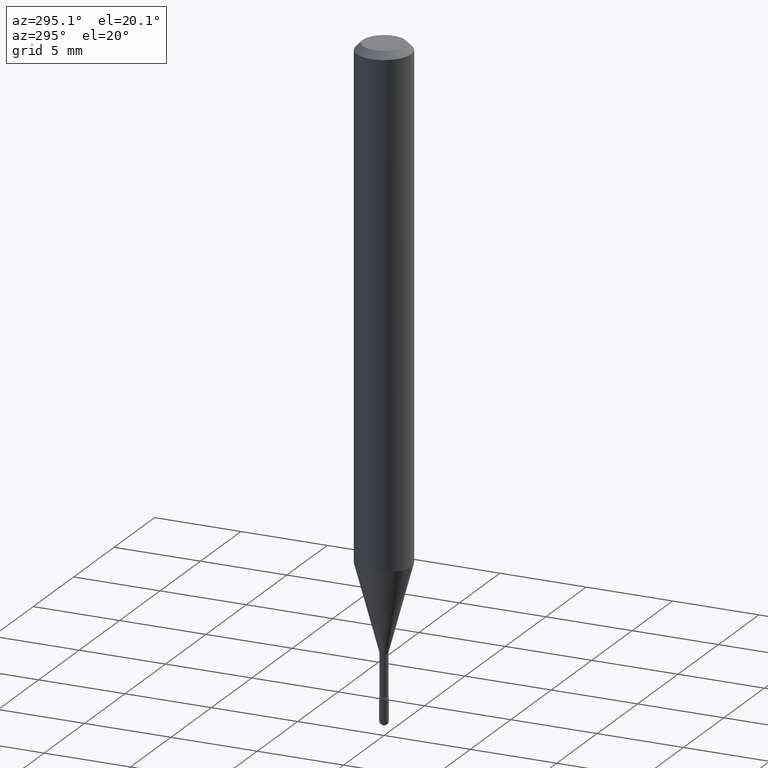
[diagram: clean part render]
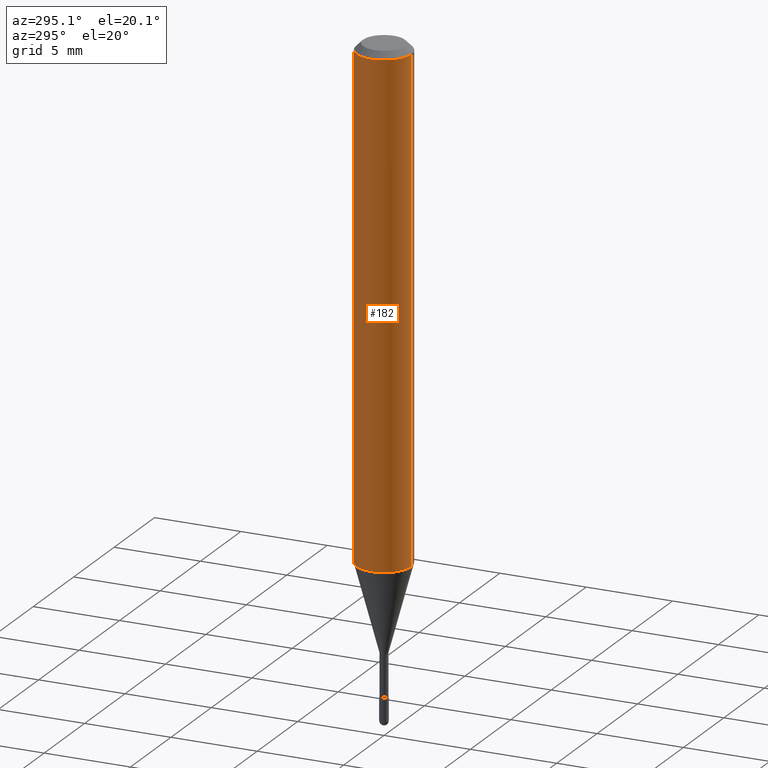
[diagram: same view with one face highlighted and labeled with its STEP entity id]
A machine part, auxiliary view. The second image highlights one B-rep face of the part: STEP entity #182.
In plain terms, the highlighted cylindrical surface (edge-blend (fillet) strip) has radius 1.5875 mm, axis along (-0, 0, 1).
Its self-contained STEP definition (entity closure, byte-faithful):
#45 = ORIENTED_EDGE ( 'NONE', *, *, #343, .T. ) ;
#79 = CARTESIAN_POINT ( 'NONE',  ( -4.364351673553637142E-16, -0.06250000000000398293, -1.141828102118092936 ) ) ;
#94 = VERTEX_POINT ( 'NONE', #169 ) ;
#107 = VECTOR ( 'NONE', #119, 39.37007874015748143 ) ;
#115 = CARTESIAN_POINT ( 'NONE',  ( 4.440892098500625669E-16, 0.06250000000000000000, 2.598561557332991619E-16 ) ) ;
#117 = DIRECTION ( 'NONE',  ( -2.445472610723861690E-29, 3.491475890527150815E-15, 1.000000000000000000 ) ) ;
#119 = DIRECTION ( 'NONE',  ( -2.445472610723861690E-29, 3.491475890527150815E-15, 1.000000000000000000 ) ) ;
#129 = EDGE_LOOP ( 'NONE', ( #435, #45, #558, #175 ) ) ;
#137 = CARTESIAN_POINT ( 'NONE',  ( 4.440892098500906207E-16, 0.06249999999999993755, -0.01500000000000030129 ) ) ;
#160 = CARTESIAN_POINT ( 'NONE',  ( -4.364351673553912750E-16, -0.06250000000000005551, -0.01499999999999986587 ) ) ;
#169 = CARTESIAN_POINT ( 'NONE',  ( 4.440892098500903249E-16, 0.06249999999999600320, -1.141828102118093602 ) ) ;
#175 = ORIENTED_EDGE ( 'NONE', *, *, #273, .F. ) ;
#182 = ADVANCED_FACE ( 'NONE', ( #407 ), #221, .T. ) ;
#210 = VERTEX_POINT ( 'NONE', #137 ) ;
#221 = CYLINDRICAL_SURFACE ( 'NONE', #381, 0.06250000000000000000 ) ;
#225 = EDGE_CURVE ( 'NONE', #350, #310, #269, .T. ) ;
#252 = CARTESIAN_POINT ( 'NONE',  ( 3.668208916085812311E-31, -5.237213835790754425E-17, -0.01500000000000008271 ) ) ;
#268 = EDGE_CURVE ( 'NONE', #94, #210, #556, .T. ) ;
#269 = LINE ( 'NONE', #446, #107 ) ;
#273 = EDGE_CURVE ( 'NONE', #210, #310, #280, .T. ) ;
#280 = CIRCLE ( 'NONE', #427, 0.06250000000000000000 ) ;
#281 = CIRCLE ( 'NONE', #296, 0.06250000000000000000 ) ;
#288 = DIRECTION ( 'NONE',  ( -2.445472610723861690E-29, 3.491475890527150421E-15, 1.000000000000000000 ) ) ;
#296 = AXIS2_PLACEMENT_3D ( 'NONE', #476, #288, #422 ) ;
#310 = VERTEX_POINT ( 'NONE', #160 ) ;
#343 = EDGE_CURVE ( 'NONE', #94, #350, #281, .T. ) ;
#350 = VERTEX_POINT ( 'NONE', #79 ) ;
#381 = AXIS2_PLACEMENT_3D ( 'NONE', #498, #533, #411 ) ;
#407 = FACE_OUTER_BOUND ( 'NONE', #129, .T. ) ;
#411 = DIRECTION ( 'NONE',  ( -6.982962677686265922E-15, -1.000000000000000000, 3.491475890527150421E-15 ) ) ;
#422 = DIRECTION ( 'NONE',  ( -6.982962677686265922E-15, -1.000000000000000000, 4.370956789862821150E-15 ) ) ;
#427 = AXIS2_PLACEMENT_3D ( 'NONE', #252, #469, #515 ) ;
#435 = ORIENTED_EDGE ( 'NONE', *, *, #268, .F. ) ;
#446 = CARTESIAN_POINT ( 'NONE',  ( -4.364351673553916201E-16, -0.06250000000000000000, 6.962906420491929152E-16 ) ) ;
#469 = DIRECTION ( 'NONE',  ( -2.445472610723861690E-29, 3.491475890527150421E-15, 1.000000000000000000 ) ) ;
#476 = CARTESIAN_POINT ( 'NONE',  ( 2.792309349884605750E-29, -3.986665289671695629E-15, -1.141828102118093380 ) ) ;
#498 = CARTESIAN_POINT ( 'NONE',  ( -1.169113584055446105E-44, 1.669184350826100908E-30, 4.780733988912460139E-16 ) ) ;
#515 = DIRECTION ( 'NONE',  ( -6.982962677686265922E-15, -1.000000000000000000, 3.483106191921935554E-15 ) ) ;
#527 = VECTOR ( 'NONE', #117, 39.37007874015748143 ) ;
#533 = DIRECTION ( 'NONE',  ( -2.445472610723861690E-29, 3.491475890527150421E-15, 1.000000000000000000 ) ) ;
#556 = LINE ( 'NONE', #115, #527 ) ;
#558 = ORIENTED_EDGE ( 'NONE', *, *, #225, .T. ) ;